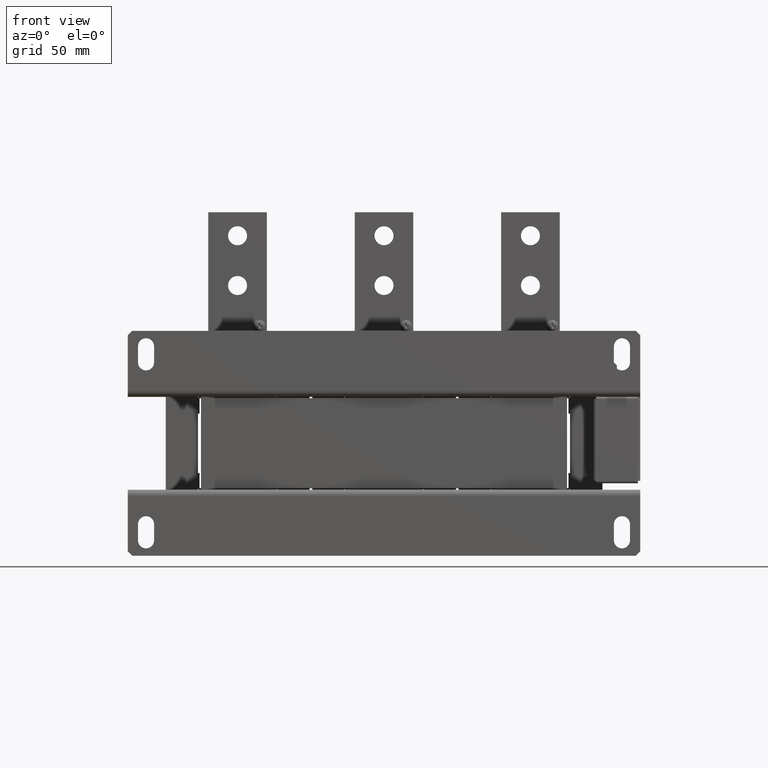
[diagram: clean part render]
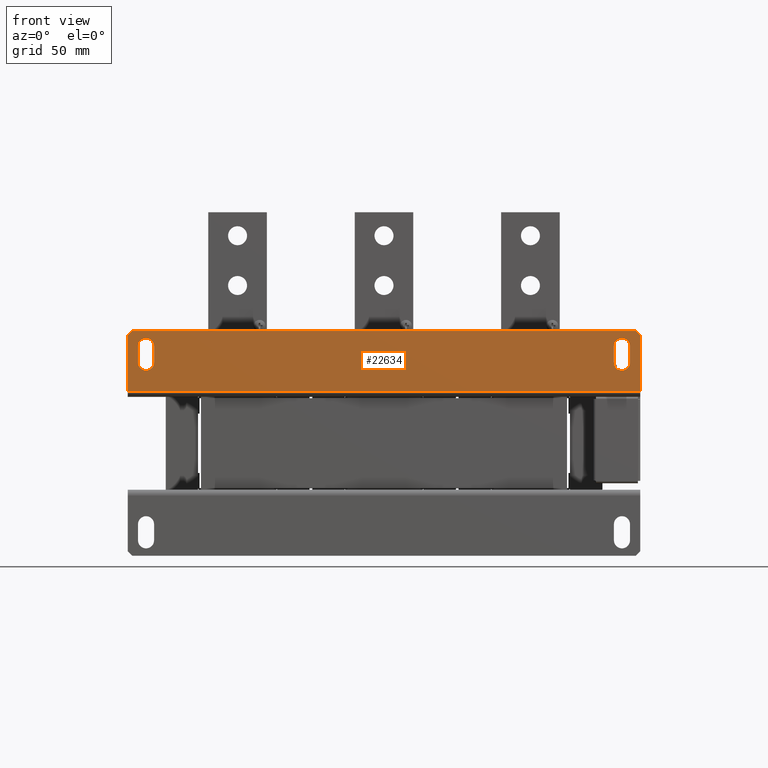
[diagram: same view with one face highlighted and labeled with its STEP entity id]
A machine part, front view. The second image highlights one B-rep face of the part: STEP entity #22634.
In plain terms, the highlighted planar face has unit normal (0, -1, 0).
Its self-contained STEP definition (entity closure, byte-faithful):
#247 = DIRECTION ( 'NONE',  ( 0.0000000000000000000, 0.0000000000000000000, 1.000000000000000000 ) ) ;
#249 = CIRCLE ( 'NONE', #2006, 5.500000000000005300 ) ;
#395 = FACE_BOUND ( 'NONE', #19526, .T. ) ;
#750 = ORIENTED_EDGE ( 'NONE', *, *, #10982, .T. ) ;
#1003 = FACE_BOUND ( 'NONE', #9125, .T. ) ;
#1475 = CARTESIAN_POINT ( 'NONE',  ( -175.0000000000000300, -3.000000000000000000, 22.50000000000000000 ) ) ;
#2006 = AXIS2_PLACEMENT_3D ( 'NONE', #18490, #5822, #20554 ) ;
#2019 = DIRECTION ( 'NONE',  ( 0.0000000000000000000, -0.0000000000000000000, -1.000000000000000000 ) ) ;
#2108 = EDGE_CURVE ( 'NONE', #21743, #4098, #14996, .T. ) ;
#2214 = DIRECTION ( 'NONE',  ( 0.0000000000000000000, 1.000000000000000000, 0.0000000000000000000 ) ) ;
#2592 = ORIENTED_EDGE ( 'NONE', *, *, #19089, .T. ) ;
#2634 = LINE ( 'NONE', #27275, #26406 ) ;
#2858 = DIRECTION ( 'NONE',  ( -0.0000000000000000000, -0.0000000000000000000, 1.000000000000000000 ) ) ;
#2983 = CARTESIAN_POINT ( 'NONE',  ( -175.0000000000000300, -3.000000000000013800, -18.50000000000000400 ) ) ;
#3009 = VERTEX_POINT ( 'NONE', #7147 ) ;
#3128 = VECTOR ( 'NONE', #2858, 1000.000000000000000 ) ;
#3433 = AXIS2_PLACEMENT_3D ( 'NONE', #11617, #26393, #13744 ) ;
#3692 = EDGE_CURVE ( 'NONE', #9263, #10306, #26440, .T. ) ;
#4098 = VERTEX_POINT ( 'NONE', #20687 ) ;
#4296 = CARTESIAN_POINT ( 'NONE',  ( -97.24999999999995700, -3.000000000000000000, 97.24999999999995700 ) ) ;
#5028 = VECTOR ( 'NONE', #9523, 1000.000000000000000 ) ;
#5088 = LINE ( 'NONE', #12823, #16414 ) ;
#5408 = EDGE_CURVE ( 'NONE', #10714, #4098, #12395, .T. ) ;
#5505 = CIRCLE ( 'NONE', #3433, 5.499999999999976900 ) ;
#5724 = DIRECTION ( 'NONE',  ( 1.000000000000000000, 0.0000000000000000000, 0.0000000000000000000 ) ) ;
#5822 = DIRECTION ( 'NONE',  ( 0.0000000000000000000, 1.000000000000000000, 0.0000000000000000000 ) ) ;
#5827 = ORIENTED_EDGE ( 'NONE', *, *, #7218, .T. ) ;
#5992 = EDGE_CURVE ( 'NONE', #13563, #11670, #17045, .T. ) ;
#6226 = VECTOR ( 'NONE', #10823, 1000.000000000000100 ) ;
#6439 = EDGE_CURVE ( 'NONE', #19783, #8186, #20067, .T. ) ;
#6466 = DIRECTION ( 'NONE',  ( -0.0000000000000000000, -0.0000000000000000000, -1.000000000000000000 ) ) ;
#6832 = CARTESIAN_POINT ( 'NONE',  ( -167.9999999999999700, -3.000000000000000000, 0.9999999999998361300 ) ) ;
#7147 = CARTESIAN_POINT ( 'NONE',  ( -157.0000000000000300, -3.000000000000000000, 0.9999999999998361300 ) ) ;
#7218 = EDGE_CURVE ( 'NONE', #21743, #26002, #14446, .T. ) ;
#7276 = CARTESIAN_POINT ( 'NONE',  ( -157.0000000000000300, -3.000000000000000000, 0.9999999999998361300 ) ) ;
#7388 = VECTOR ( 'NONE', #25226, 1000.000000000000000 ) ;
#8186 = VERTEX_POINT ( 'NONE', #11192 ) ;
#8307 = CARTESIAN_POINT ( 'NONE',  ( 0.0000000000000000000, -3.000000000000000000, 0.0000000000000000000 ) ) ;
#8336 = ORIENTED_EDGE ( 'NONE', *, *, #12304, .F. ) ;
#8385 = CARTESIAN_POINT ( 'NONE',  ( -167.9999999999999700, -3.000000000000000000, 0.9999999999998361300 ) ) ;
#8531 = ORIENTED_EDGE ( 'NONE', *, *, #5408, .T. ) ;
#8919 = LINE ( 'NONE', #19740, #3128 ) ;
#8977 = CARTESIAN_POINT ( 'NONE',  ( -175.0000000000000300, -3.000000000000013800, -18.50000000000000400 ) ) ;
#9000 = AXIS2_PLACEMENT_3D ( 'NONE', #25515, #12899, #247 ) ;
#9125 = EDGE_LOOP ( 'NONE', ( #13331, #750, #10374, #2592 ) ) ;
#9160 = CARTESIAN_POINT ( 'NONE',  ( 174.9999999999999700, -3.000000000000000000, -18.49999999999998900 ) ) ;
#9263 = VERTEX_POINT ( 'NONE', #6832 ) ;
#9523 = DIRECTION ( 'NONE',  ( 0.0000000000000000000, 0.0000000000000000000, 1.000000000000000000 ) ) ;
#9552 = CARTESIAN_POINT ( 'NONE',  ( 168.0000000000000000, -3.000000000000000000, 0.9999999999998343500 ) ) ;
#10306 = VERTEX_POINT ( 'NONE', #12998 ) ;
#10374 = ORIENTED_EDGE ( 'NONE', *, *, #6439, .T. ) ;
#10714 = VERTEX_POINT ( 'NONE', #16513 ) ;
#10737 = DIRECTION ( 'NONE',  ( -0.7071067811865474600, -0.0000000000000000000, 0.7071067811865474600 ) ) ;
#10823 = DIRECTION ( 'NONE',  ( -0.7071067811865474600, -0.0000000000000000000, -0.7071067811865474600 ) ) ;
#10982 = EDGE_CURVE ( 'NONE', #14049, #19783, #26264, .T. ) ;
#11169 = ORIENTED_EDGE ( 'NONE', *, *, #2108, .F. ) ;
#11192 = CARTESIAN_POINT ( 'NONE',  ( 168.0000000000000000, -3.000000000000000000, 11.99999999999983700 ) ) ;
#11351 = DIRECTION ( 'NONE',  ( 1.000000000000000000, -0.0000000000000000000, -0.0000000000000000000 ) ) ;
#11617 = CARTESIAN_POINT ( 'NONE',  ( -162.5000000000000000, -3.000000000000000000, 0.9999999999998361300 ) ) ;
#11670 = VERTEX_POINT ( 'NONE', #9160 ) ;
#11775 = EDGE_CURVE ( 'NONE', #3009, #9263, #5505, .T. ) ;
#11954 = EDGE_CURVE ( 'NONE', #14860, #14049, #249, .T. ) ;
#12304 = EDGE_CURVE ( 'NONE', #13563, #26002, #8919, .T. ) ;
#12395 = LINE ( 'NONE', #16791, #17151 ) ;
#12536 = PLANE ( 'NONE',  #16418 ) ;
#12587 = CARTESIAN_POINT ( 'NONE',  ( -171.9999999999999400, -3.000000000000000000, 22.49999999999998900 ) ) ;
#12823 = CARTESIAN_POINT ( 'NONE',  ( 168.0000000000000000, -3.000000000000000000, 0.9999999999998343500 ) ) ;
#12899 = DIRECTION ( 'NONE',  ( 0.0000000000000000000, 1.000000000000000000, 0.0000000000000000000 ) ) ;
#12972 = EDGE_CURVE ( 'NONE', #10714, #11670, #2634, .T. ) ;
#12998 = CARTESIAN_POINT ( 'NONE',  ( -167.9999999999999700, -3.000000000000000000, 11.99999999999983300 ) ) ;
#13331 = ORIENTED_EDGE ( 'NONE', *, *, #11954, .T. ) ;
#13563 = VERTEX_POINT ( 'NONE', #8977 ) ;
#13744 = DIRECTION ( 'NONE',  ( 0.0000000000000000000, 0.0000000000000000000, 1.000000000000000000 ) ) ;
#14049 = VERTEX_POINT ( 'NONE', #20767 ) ;
#14273 = VECTOR ( 'NONE', #26480, 1000.000000000000000 ) ;
#14446 = LINE ( 'NONE', #4296, #6226 ) ;
#14542 = EDGE_CURVE ( 'NONE', #16303, #3009, #16909, .T. ) ;
#14644 = DIRECTION ( 'NONE',  ( 0.0000000000000000000, -1.000000000000000000, 0.0000000000000000000 ) ) ;
#14839 = CARTESIAN_POINT ( 'NONE',  ( 162.5000000000000000, -3.000000000000000000, 11.99999999999983500 ) ) ;
#14860 = VERTEX_POINT ( 'NONE', #9552 ) ;
#14996 = LINE ( 'NONE', #1475, #24540 ) ;
#15529 = CARTESIAN_POINT ( 'NONE',  ( -157.0000000000000300, -3.000000000000000000, 11.99999999999983500 ) ) ;
#15825 = ORIENTED_EDGE ( 'NONE', *, *, #11775, .T. ) ;
#16303 = VERTEX_POINT ( 'NONE', #15529 ) ;
#16414 = VECTOR ( 'NONE', #6466, 1000.000000000000000 ) ;
#16418 = AXIS2_PLACEMENT_3D ( 'NONE', #8307, #14644, #2019 ) ;
#16513 = CARTESIAN_POINT ( 'NONE',  ( 175.0000000000000000, -3.000000000000000000, 19.49999999999997900 ) ) ;
#16778 = FACE_OUTER_BOUND ( 'NONE', #17956, .T. ) ;
#16791 = CARTESIAN_POINT ( 'NONE',  ( 97.24999999999998600, -3.000000000000000000, 97.24999999999998600 ) ) ;
#16909 = LINE ( 'NONE', #7276, #14273 ) ;
#17000 = DIRECTION ( 'NONE',  ( 0.0000000000000000000, 0.0000000000000000000, 1.000000000000000000 ) ) ;
#17045 = LINE ( 'NONE', #2983, #25219 ) ;
#17115 = CARTESIAN_POINT ( 'NONE',  ( -175.0000000000000600, -3.000000000000000000, 19.49999999999986900 ) ) ;
#17151 = VECTOR ( 'NONE', #10737, 1000.000000000000100 ) ;
#17548 = AXIS2_PLACEMENT_3D ( 'NONE', #14839, #2214, #17000 ) ;
#17956 = EDGE_LOOP ( 'NONE', ( #11169, #5827, #8336, #18057, #26661, #8531 ) ) ;
#18057 = ORIENTED_EDGE ( 'NONE', *, *, #5992, .T. ) ;
#18490 = CARTESIAN_POINT ( 'NONE',  ( 162.5000000000000000, -3.000000000000000000, 0.9999999999998361300 ) ) ;
#19089 = EDGE_CURVE ( 'NONE', #8186, #14860, #5088, .T. ) ;
#19526 = EDGE_LOOP ( 'NONE', ( #15825, #21627, #23845, #26095 ) ) ;
#19740 = CARTESIAN_POINT ( 'NONE',  ( -175.0000000000000300, -3.000000000000000000, 22.50000000000000000 ) ) ;
#19783 = VERTEX_POINT ( 'NONE', #26718 ) ;
#20052 = CARTESIAN_POINT ( 'NONE',  ( 157.0000000000000000, -3.000000000000000000, 0.9999999999998325800 ) ) ;
#20067 = CIRCLE ( 'NONE', #17548, 5.500000000000006200 ) ;
#20554 = DIRECTION ( 'NONE',  ( 0.0000000000000000000, 0.0000000000000000000, 1.000000000000000000 ) ) ;
#20687 = CARTESIAN_POINT ( 'NONE',  ( 171.9999999999999400, -3.000000000000000000, 22.50000000000001100 ) ) ;
#20767 = CARTESIAN_POINT ( 'NONE',  ( 157.0000000000000000, -3.000000000000000000, 0.9999999999998325800 ) ) ;
#20893 = DIRECTION ( 'NONE',  ( 0.0000000000000000000, 0.0000000000000000000, -1.000000000000000000 ) ) ;
#21627 = ORIENTED_EDGE ( 'NONE', *, *, #3692, .T. ) ;
#21743 = VERTEX_POINT ( 'NONE', #12587 ) ;
#22634 = ADVANCED_FACE ( 'NONE', ( #1003, #395, #16778 ), #12536, .T. ) ;
#23845 = ORIENTED_EDGE ( 'NONE', *, *, #25231, .T. ) ;
#24540 = VECTOR ( 'NONE', #5724, 1000.000000000000000 ) ;
#25219 = VECTOR ( 'NONE', #11351, 1000.000000000000000 ) ;
#25226 = DIRECTION ( 'NONE',  ( 0.0000000000000000000, 0.0000000000000000000, 1.000000000000000000 ) ) ;
#25231 = EDGE_CURVE ( 'NONE', #10306, #16303, #25325, .T. ) ;
#25325 = CIRCLE ( 'NONE', #9000, 5.499999999999978700 ) ;
#25515 = CARTESIAN_POINT ( 'NONE',  ( -162.5000000000000000, -3.000000000000000000, 11.99999999999983500 ) ) ;
#26002 = VERTEX_POINT ( 'NONE', #17115 ) ;
#26095 = ORIENTED_EDGE ( 'NONE', *, *, #14542, .T. ) ;
#26264 = LINE ( 'NONE', #20052, #5028 ) ;
#26393 = DIRECTION ( 'NONE',  ( 0.0000000000000000000, 1.000000000000000000, 0.0000000000000000000 ) ) ;
#26406 = VECTOR ( 'NONE', #20893, 1000.000000000000000 ) ;
#26440 = LINE ( 'NONE', #8385, #7388 ) ;
#26480 = DIRECTION ( 'NONE',  ( -0.0000000000000000000, -0.0000000000000000000, -1.000000000000000000 ) ) ;
#26661 = ORIENTED_EDGE ( 'NONE', *, *, #12972, .F. ) ;
#26718 = CARTESIAN_POINT ( 'NONE',  ( 157.0000000000000000, -3.000000000000000000, 11.99999999999983800 ) ) ;
#27275 = CARTESIAN_POINT ( 'NONE',  ( 174.9999999999999700, -3.000000000000000000, 22.50000000000000000 ) ) ;